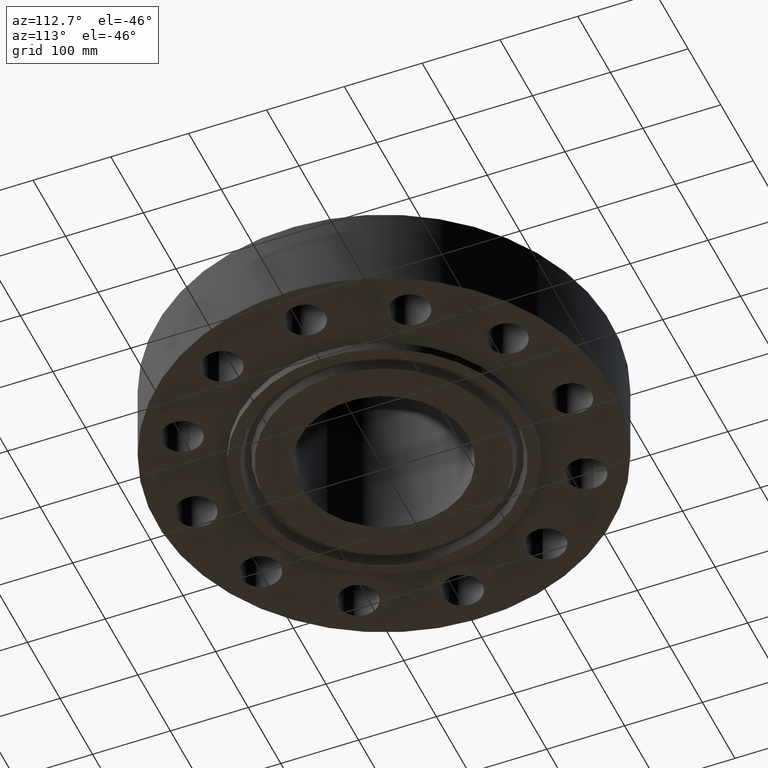
[diagram: clean part render]
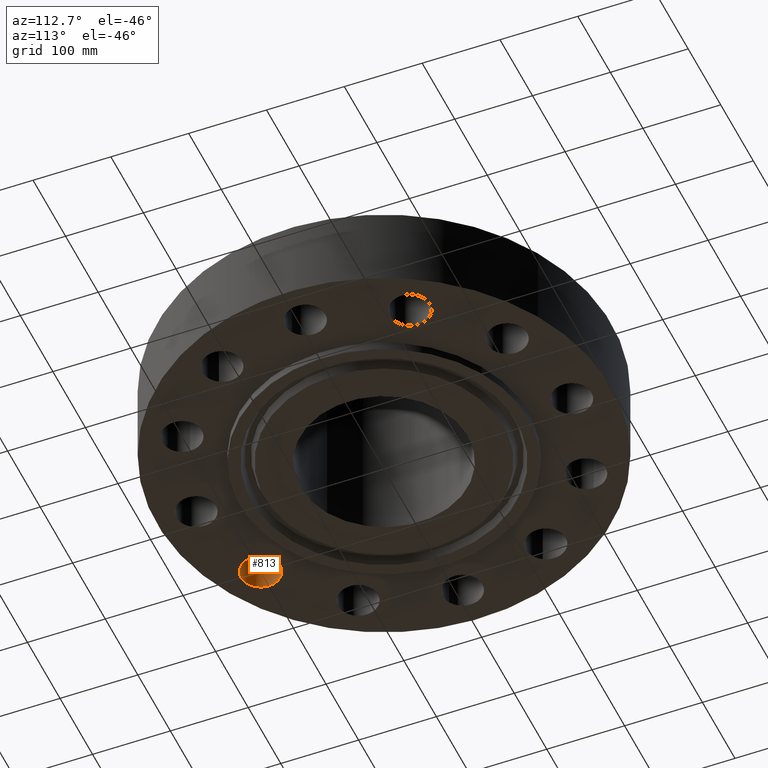
[diagram: same view with one face highlighted and labeled with its STEP entity id]
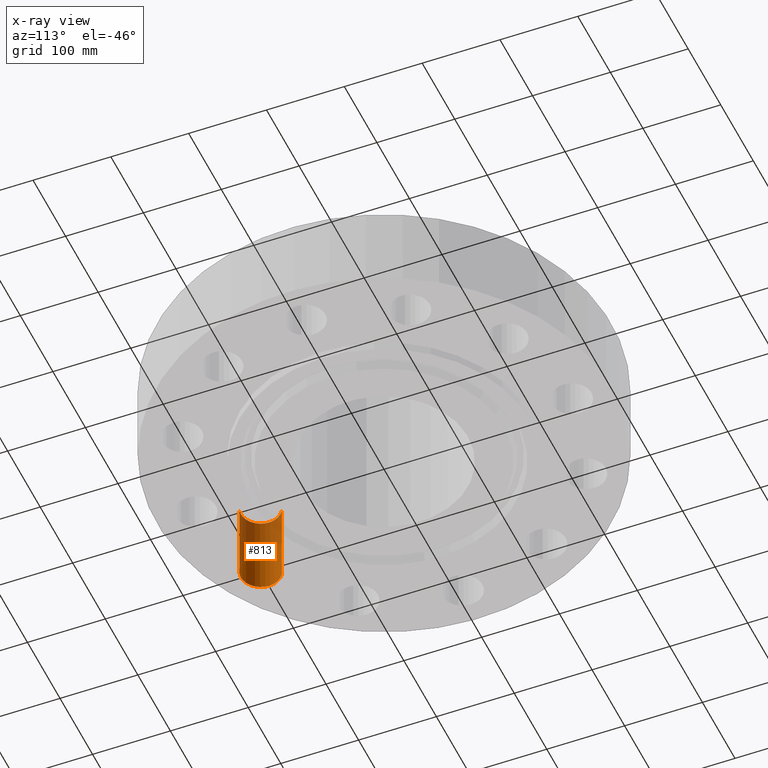
[diagram: x-ray of the same camera — body ghosted, the highlighted face saturated]
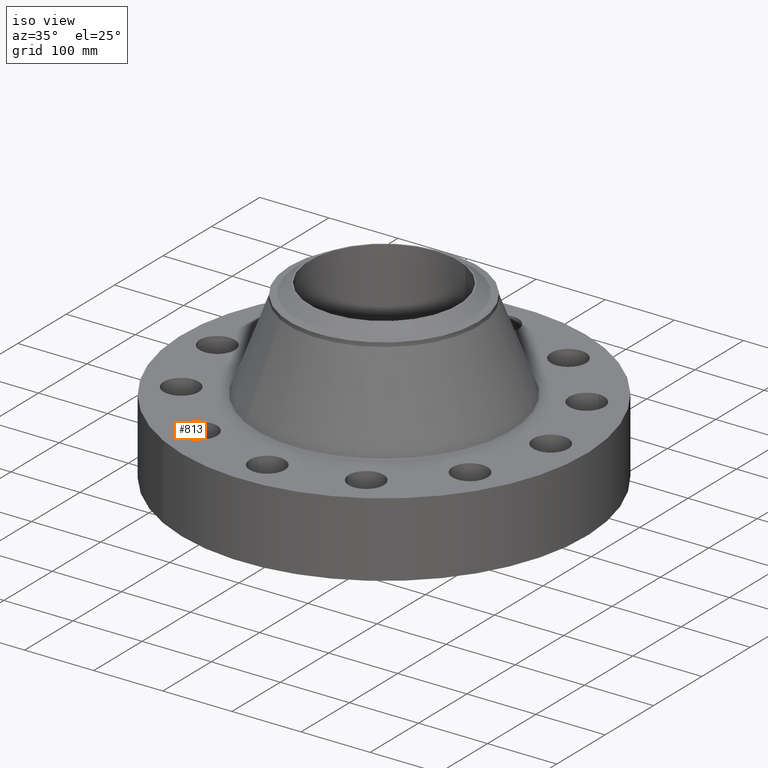
[diagram: same view with one face highlighted and labeled with its STEP entity id]
A machine part, auxiliary view. The second image highlights one B-rep face of the part: STEP entity #813.
The next image is the same camera in x-ray: the body ghosted, the highlighted face saturated — about 41% of this face is hidden behind the body in this view.
A second angle (iso view) of the same face is appended — the face is thin or edge-on in the first view.
In plain terms, the highlighted cylindrical surface (edge-blend (fillet) strip) has radius 25.4 mm, axis along (0, 0, -1).
Its self-contained STEP definition (entity closure, byte-faithful):
#694=AXIS2_PLACEMENT_3D('Circle Axis2P3D',#692,#693,$) ;
#786=AXIS2_PLACEMENT_3D('Cylinder Axis2P3D',#783,#784,#785) ;
#804=AXIS2_PLACEMENT_3D('Circle Axis2P3D',#802,#803,$) ;
#692=CARTESIAN_POINT('Axis2P3D Location',(-4.75000000002,-8.22724133599,0.)) ;
#696=CARTESIAN_POINT('Vertex',(-4.2297039768,-9.08122731259,0.)) ;
#698=CARTESIAN_POINT('Vertex',(-5.27029602323,-7.37325535938,0.)) ;
#783=CARTESIAN_POINT('Axis2P3D Location',(-4.75000000002,-8.22724133599,4.24606299214)) ;
#788=CARTESIAN_POINT('Line Origine',(-4.2297039768,-9.08122731259,2.12500000001)) ;
#792=CARTESIAN_POINT('Vertex',(-4.2297039768,-9.08122731259,4.25000000002)) ;
#795=CARTESIAN_POINT('Line Origine',(-5.27029602323,-7.37325535938,2.12500000001)) ;
#799=CARTESIAN_POINT('Vertex',(-5.27029602323,-7.37325535938,4.25000000002)) ;
#802=CARTESIAN_POINT('Axis2P3D Location',(-4.75000000002,-8.22724133599,4.25000000002)) ;
#693=DIRECTION('Axis2P3D Direction',(0.,0.,-0.0393700787402)) ;
#784=DIRECTION('Axis2P3D Direction',(0.,0.,-0.0393700787402)) ;
#785=DIRECTION('Axis2P3D XDirection',(-0.0204840954021,0.0336214951417,0.)) ;
#789=DIRECTION('Vector Direction',(0.,0.,-0.0393700787402)) ;
#796=DIRECTION('Vector Direction',(0.,0.,-0.0393700787402)) ;
#803=DIRECTION('Axis2P3D Direction',(0.,0.,-0.0393700787402)) ;
#790=VECTOR('Line Direction',#789,0.0393700787402) ;
#797=VECTOR('Line Direction',#796,0.0393700787402) ;
#808=ORIENTED_EDGE('',*,*,#794,.F.) ;
#809=ORIENTED_EDGE('',*,*,#700,.T.) ;
#810=ORIENTED_EDGE('',*,*,#801,.T.) ;
#811=ORIENTED_EDGE('',*,*,#806,.F.) ;
#813=ADVANCED_FACE('PartBody',(#812),#787,.F.) ;
#695=CIRCLE('generated circle',#694,1.) ;
#805=CIRCLE('generated circle',#804,1.) ;
#787=CYLINDRICAL_SURFACE('generated cylinder',#786,1.) ;
#700=EDGE_CURVE('',#697,#699,#695,.T.) ;
#794=EDGE_CURVE('',#697,#793,#791,.F.) ;
#801=EDGE_CURVE('',#699,#800,#798,.F.) ;
#806=EDGE_CURVE('',#793,#800,#805,.T.) ;
#807=EDGE_LOOP('',(#808,#809,#810,#811)) ;
#812=FACE_OUTER_BOUND('',#807,.T.) ;
#791=LINE('Line',#788,#790) ;
#798=LINE('Line',#795,#797) ;
#697=VERTEX_POINT('',#696) ;
#699=VERTEX_POINT('',#698) ;
#793=VERTEX_POINT('',#792) ;
#800=VERTEX_POINT('',#799) ;